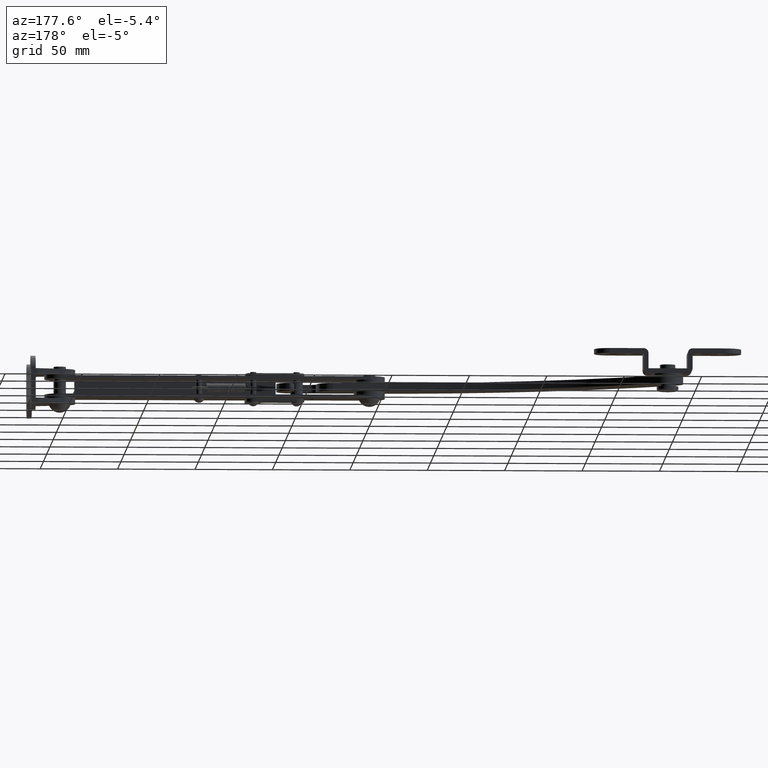
[diagram: clean part render]
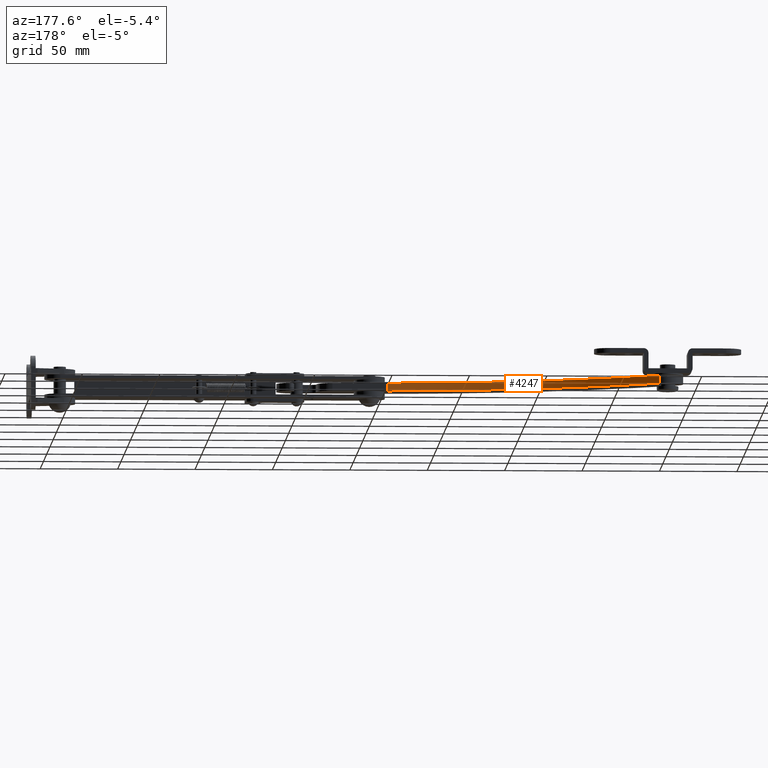
[diagram: same view with one face highlighted and labeled with its STEP entity id]
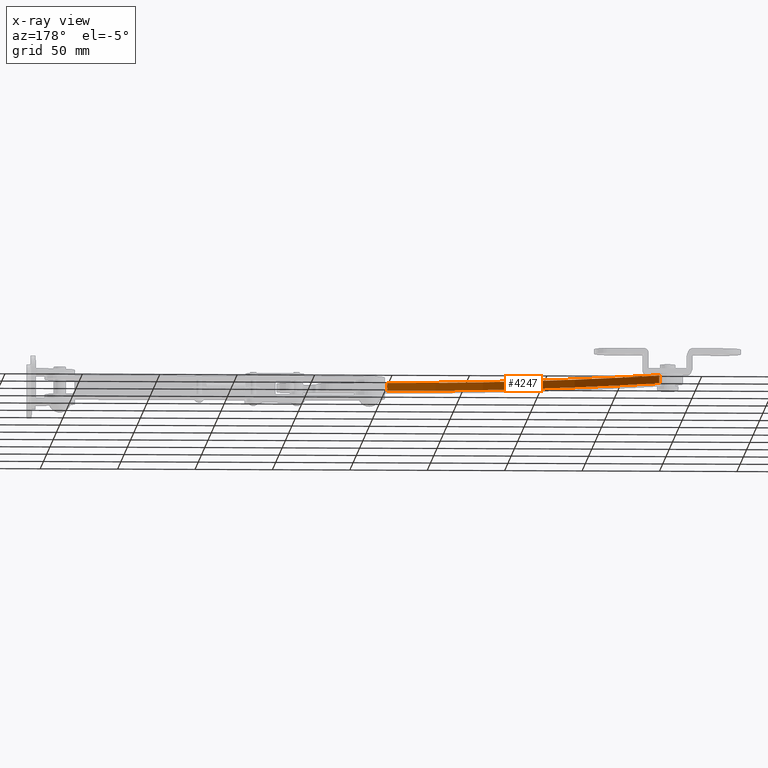
[diagram: x-ray of the same camera — body ghosted, the highlighted face saturated]
A machine part, auxiliary view. The second image highlights one B-rep face of the part: STEP entity #4247.
The next image is the same camera in x-ray: the body ghosted, the highlighted face saturated — about 0% of this face is hidden behind the body in this view.
In plain terms, the highlighted cylindrical surface (partial cylindrical patch) has radius 311 mm, axis along (0, 0, -1).
Its self-contained STEP definition (entity closure, byte-faithful):
#162 = VERTEX_POINT ( 'NONE', #16727 ) ;
#2149 = EDGE_CURVE ( 'NONE', #162, #7357, #14543, .T. ) ;
#3143 = CARTESIAN_POINT ( 'NONE',  ( -200.1210320000000100, 321.0000000000000000, -2.500000000000000000 ) ) ;
#3573 = CARTESIAN_POINT ( 'NONE',  ( -200.1210320000000100, 321.0000000000000000, 2.499999999999889900 ) ) ;
#4096 = ORIENTED_EDGE ( 'NONE', *, *, #15679, .F. ) ;
#4247 = ADVANCED_FACE ( 'NONE', ( #5731 ), #5288, .F. ) ;
#4479 = DIRECTION ( 'NONE',  ( 1.000000000000000000, 0.0000000000000000000, 0.0000000000000000000 ) ) ;
#4903 = DIRECTION ( 'NONE',  ( 1.000000000000000000, 0.0000000000000000000, 0.0000000000000000000 ) ) ;
#5288 = CYLINDRICAL_SURFACE ( 'NONE', #16780, 311.0000000000004000 ) ;
#5681 = LINE ( 'NONE', #15412, #12401 ) ;
#5731 = FACE_OUTER_BOUND ( 'NONE', #12337, .T. ) ;
#6047 = DIRECTION ( 'NONE',  ( 0.0000000000000000000, 0.0000000000000000000, -1.000000000000000000 ) ) ;
#6687 = AXIS2_PLACEMENT_3D ( 'NONE', #3573, #12944, #4903 ) ;
#7314 = CARTESIAN_POINT ( 'NONE',  ( -384.3714106253735300, 70.45499810132565700, -2.500000000000000000 ) ) ;
#7357 = VERTEX_POINT ( 'NONE', #15817 ) ;
#7360 = DIRECTION ( 'NONE',  ( 0.0000000000000000000, 0.0000000000000000000, -1.000000000000000000 ) ) ;
#7834 = EDGE_CURVE ( 'NONE', #7357, #15180, #5681, .T. ) ;
#8687 = ORIENTED_EDGE ( 'NONE', *, *, #7834, .T. ) ;
#8776 = CIRCLE ( 'NONE', #13223, 311.0000000000004000 ) ;
#8806 = VECTOR ( 'NONE', #6047, 1000.000000000000000 ) ;
#10701 = ORIENTED_EDGE ( 'NONE', *, *, #2149, .T. ) ;
#10919 = DIRECTION ( 'NONE',  ( -1.000000000000000000, 0.0000000000000000000, 0.0000000000000000000 ) ) ;
#11378 = CARTESIAN_POINT ( 'NONE',  ( -384.3714106253735300, 70.45499810132565700, 2.499999999999889900 ) ) ;
#12278 = CARTESIAN_POINT ( 'NONE',  ( -200.1210320000000100, 321.0000000000000000, 2.499999999999889900 ) ) ;
#12337 = EDGE_LOOP ( 'NONE', ( #12404, #4096, #10701, #8687 ) ) ;
#12391 = LINE ( 'NONE', #11378, #8806 ) ;
#12401 = VECTOR ( 'NONE', #7360, 1000.000000000000000 ) ;
#12404 = ORIENTED_EDGE ( 'NONE', *, *, #17278, .F. ) ;
#12528 = DIRECTION ( 'NONE',  ( 0.0000000000000000000, -0.0000000000000000000, 1.000000000000000000 ) ) ;
#12783 = CARTESIAN_POINT ( 'NONE',  ( -211.2709216193495600, 10.19993571191711200, -2.500000000000000000 ) ) ;
#12944 = DIRECTION ( 'NONE',  ( 0.0000000000000000000, -0.0000000000000000000, 1.000000000000000000 ) ) ;
#13223 = AXIS2_PLACEMENT_3D ( 'NONE', #3143, #12528, #4479 ) ;
#13805 = VERTEX_POINT ( 'NONE', #7314 ) ;
#14543 = CIRCLE ( 'NONE', #6687, 311.0000000000004000 ) ;
#15180 = VERTEX_POINT ( 'NONE', #12783 ) ;
#15412 = CARTESIAN_POINT ( 'NONE',  ( -211.2709216193495600, 10.19993571191711200, 2.499999999999889900 ) ) ;
#15679 = EDGE_CURVE ( 'NONE', #162, #13805, #12391, .T. ) ;
#15817 = CARTESIAN_POINT ( 'NONE',  ( -211.2709216193495600, 10.19993571191711200, 2.499999999999889900 ) ) ;
#16284 = DIRECTION ( 'NONE',  ( 0.0000000000000000000, 0.0000000000000000000, -1.000000000000000000 ) ) ;
#16727 = CARTESIAN_POINT ( 'NONE',  ( -384.3714106253735300, 70.45499810132565700, 2.499999999999889900 ) ) ;
#16780 = AXIS2_PLACEMENT_3D ( 'NONE', #12278, #16284, #10919 ) ;
#17278 = EDGE_CURVE ( 'NONE', #13805, #15180, #8776, .T. ) ;